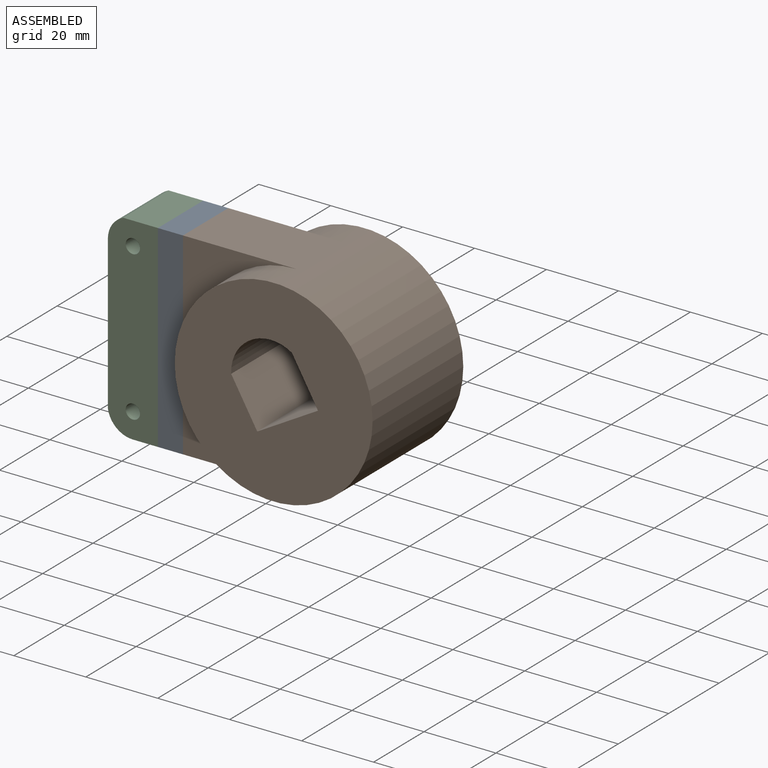
[diagram: assembled view]
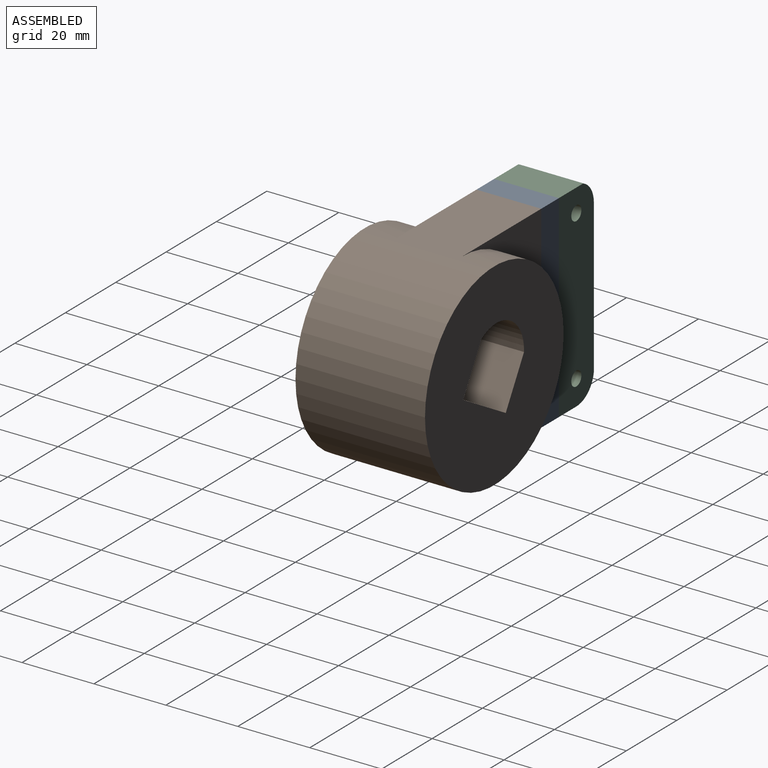
[diagram: assembled view, second angle]
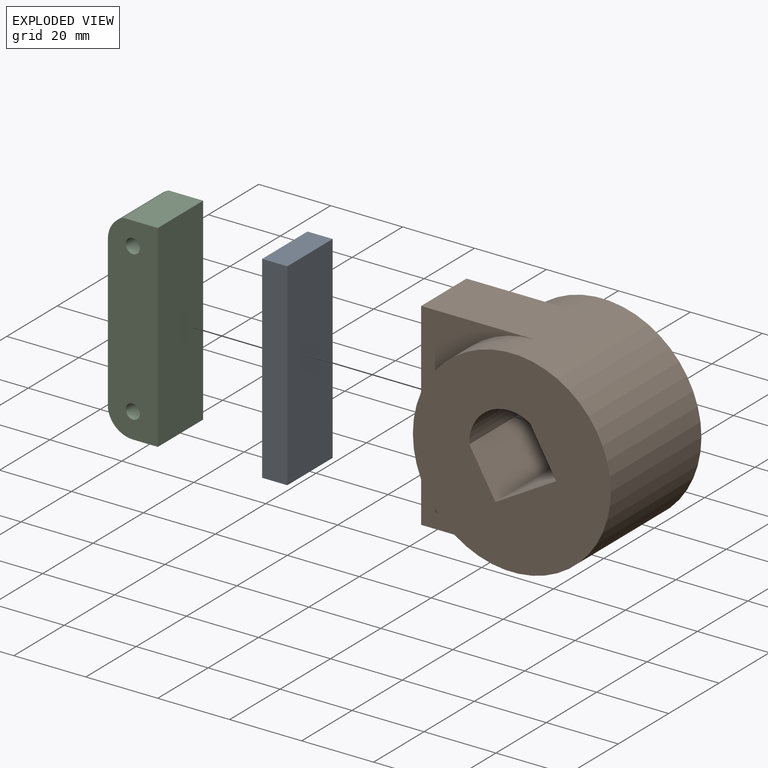
[diagram: exploded view]
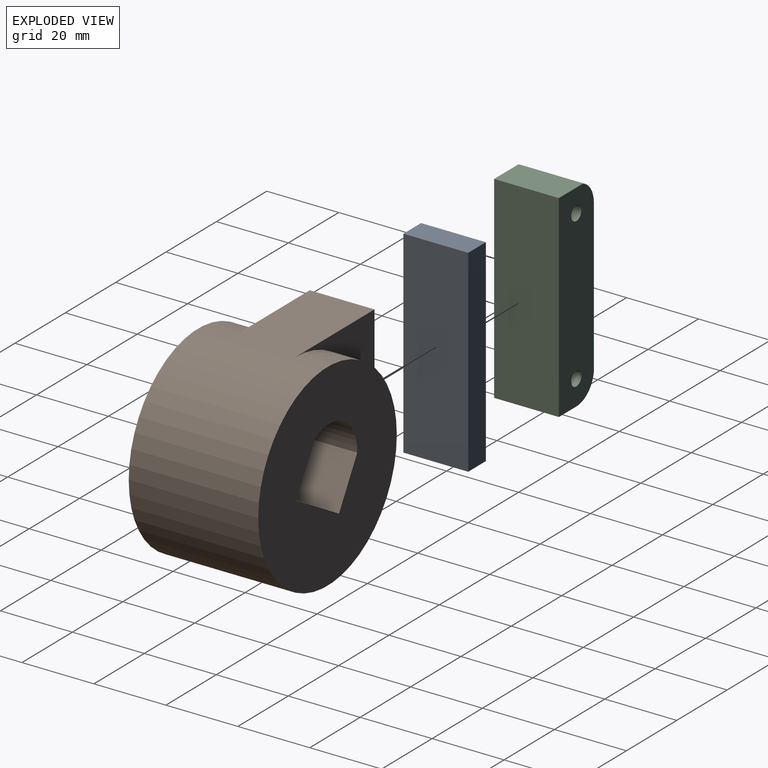
[diagram: exploded view, second angle]
ASSEMBLY  parts=3 mates=4
PART A: 6 faces, bbox 7x18x55 mm
  f0: plane 18x7mm, normal (0,0,-1), area 126mm2, adj f1,f3,f4,f5
  f1: plane 55x18mm, normal (1,0,0), area 990mm2, adj f0,f2,f4,f5
  f2: plane 18x7mm, normal (0,0,1), area 126mm2, adj f1,f3,f4,f5
  f3: plane 55x18mm, normal (-1,0,0), area 990mm2, adj f0,f2,f4,f5
  f4: plane 55x7mm, normal (0,-1,0), area 385mm2, adj f0,f1,f2,f3
  f5: plane 55x7mm, normal (0,1,0), area 385mm2, adj f0,f1,f2,f3
PART B: 12 faces, bbox 59x36x55 mm
  f0: cylinder r=27.5mm len=55mm, axis (0,1,0), area 4665.3mm2, adj f5,f6,f7,f8,f10,f11
  f1: cylinder r=11mm len=36mm, axis (0,1,0), area 862.8mm2, adj f2,f4,f5,f6
  f2: plane 36x12.56mm, normal (-0.87,0,-0.5), area 522mm2, adj f1,f3,f5,f6
  f3: plane 36x16.89mm, normal (-0.5,0,0.87), area 702mm2, adj f2,f4,f5,f6
  f4: plane 36x12.56mm, normal (0.87,0,0.5), area 522mm2, adj f1,f3,f5,f6
  f5: plane 55x55mm, normal (0,-1,0), area 2010.9mm2, adj f0,f1,f2,f3,f4
  f6: plane 55x55mm, normal (0,1,0), area 2010.9mm2, adj f0,f1,f2,f3,f4
  f7: plane 31.5x18mm, normal (0,0,-1), area 567mm2, adj f0,f9,f10,f11
  f8: plane 31.5x18mm, normal (0,0,1), area 567mm2, adj f0,f9,f10,f11
  f9: plane 55x18mm, normal (-1,0,0), area 990mm2, adj f7,f8,f10,f11
  f10: plane 55x31.5mm, normal (0,-1,0), area 544.6mm2, adj f0,f7,f8,f9
  f11: plane 55x31.5mm, normal (0,1,0), area 544.6mm2, adj f0,f7,f8,f9
PART C: 10 faces, bbox 13.9x18x55 mm
  f0: plane 42.57x18mm, normal (-1,0,0), area 766.3mm2, adj f1,f5,f6,f7
  f1: cylinder r=6.94mm len=18mm, axis (0,1,0), area 147.1mm2, adj f0,f2,f6,f7
  f2: plane 18x9.61mm, normal (0,0,-1), area 173mm2, adj f1,f3,f6,f7
  f3: plane 55x18mm, normal (1,0,0), area 990mm2, adj f2,f4,f6,f7
  f4: plane 18x6.95mm, normal (0,0,1), area 125mm2, adj f3,f5,f6,f7
  f5: cylinder r=7.02mm len=18mm, axis (0,1,0), area 180.3mm2, adj f0,f4,f6,f7
  f6: plane 55x13.89mm, normal (0,-1,0), area 721.1mm2, adj f0,f1,f2,f3,f4,f5,f8,f9
  f7: plane 55x13.89mm, normal (0,1,0), area 721.1mm2, adj f0,f1,f2,f3,f4,f5,f8,f9
  f8: cylinder r=2mm len=18mm, axis (0,1,0), area 226.2mm2, adj f6,f7
  f9: cylinder r=2mm len=18mm, axis (0,1,0), area 226.2mm2, adj f6,f7
PLACE A t=(7.76,-33.8,-0.14)mm
PLACE B t=(-1.5,-42.8,0)mm
PLACE C rot(axis=(1,0,0),180deg) t=(13.53,-51.8,-0.28)mm
MATE parallel B.f9 <-> A.f1  axis (-1,0,0) through (11.26,-42.8,27.36)mm
MATE fastened C.f3 <-> A.f3  axis (1,0,0) through (4.26,-51.8,27.36)mm
MATE parallel C.f3 <-> A.f3  axis (1,0,0) through (4.26,-42.8,-27.64)mm
MATE fastened B.f9 <-> A.f1  axis (-1,0,0) through (11.26,-51.8,27.36)mm
